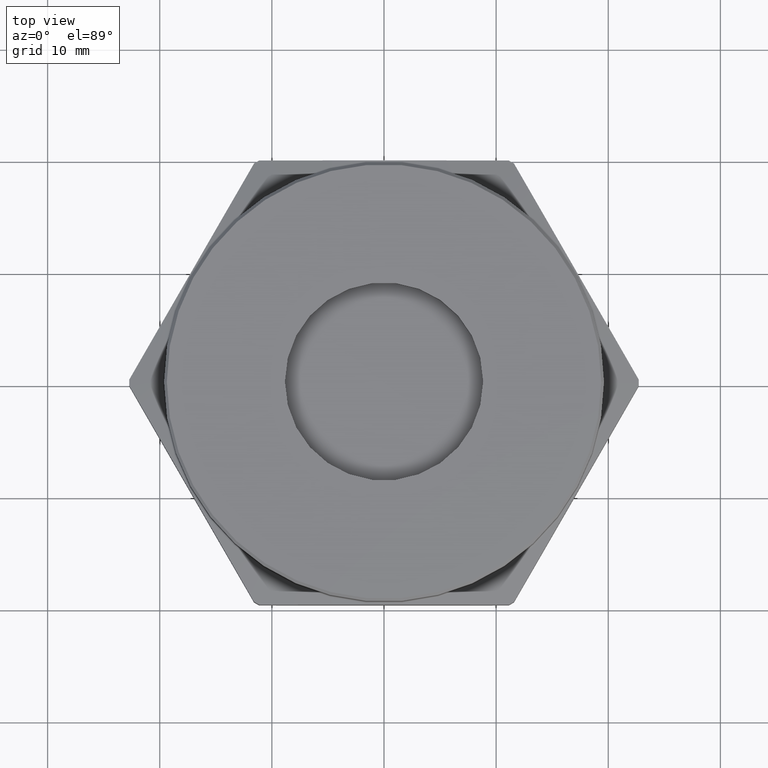
[diagram: clean part render]
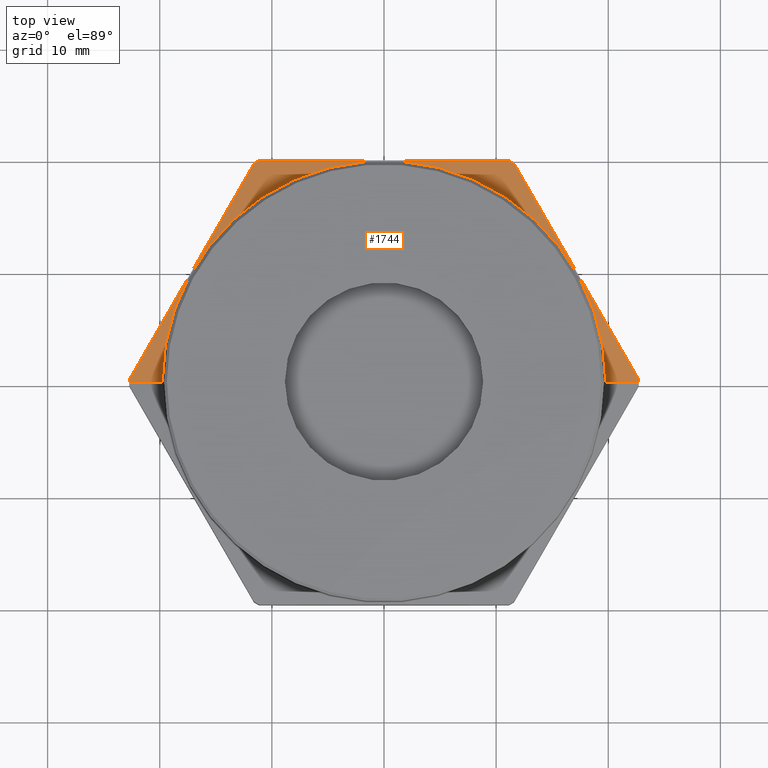
[diagram: same view with one face highlighted and labeled with its STEP entity id]
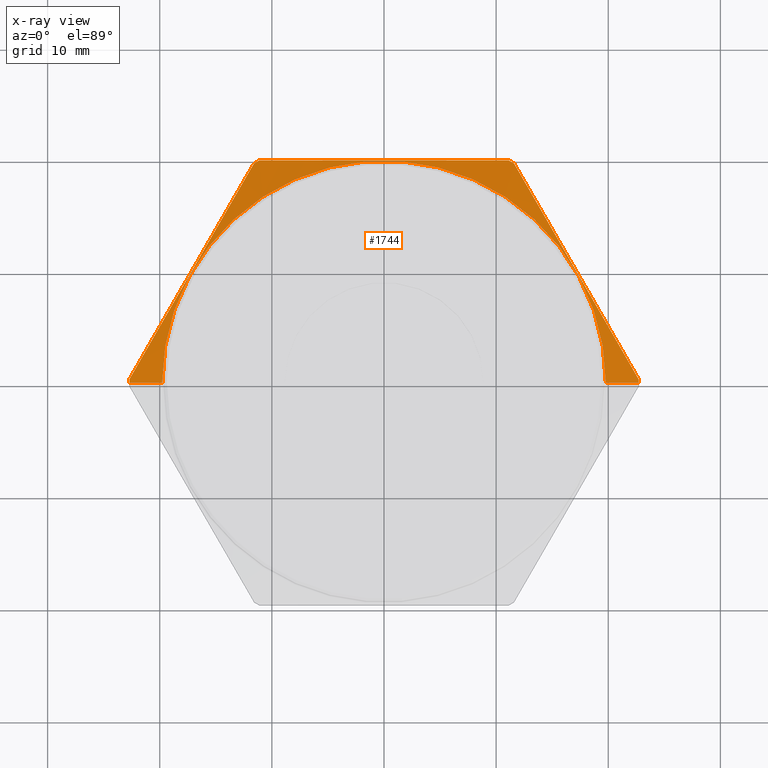
[diagram: x-ray of the same camera — body ghosted, the highlighted face saturated]
A machine part, top view. The second image highlights one B-rep face of the part: STEP entity #1744.
The next image is the same camera in x-ray: the body ghosted, the highlighted face saturated — about 0% of this face is hidden behind the body in this view.
In plain terms, the highlighted conical surface has half-angle 78 deg.
Its self-contained STEP definition (entity closure, byte-faithful):
#148 = EDGE_LOOP ( 'NONE', ( #2007, #2008, #2009, #2010, #2011, #2012, #2013, #2014, #2015, #2016 ) ) ;
#795 = CARTESIAN_POINT ( 'NONE',  ( -0.4382099987001327700, 0.7799999999999999200, 0.1840327258269070500 ) ) ;
#796 = CARTESIAN_POINT ( 'NONE',  ( 0.7788367064734583700, 9.537998796411874400E-017, 0.2086530914596895800 ) ) ;
#806 = CARTESIAN_POINT ( 'NONE',  ( -0.8946048143019284000, 0.01049900893333925200, 0.1840327258269070800 ) ) ;
#815 = CARTESIAN_POINT ( 'NONE',  ( -0.4563948156017967900, 0.7695009910666600300, 0.1840327258269070500 ) ) ;
#829 = CARTESIAN_POINT ( 'NONE',  ( 0.8946048143019284000, 0.01049900893333993500, 0.1840327258269068800 ) ) ;
#837 = CARTESIAN_POINT ( 'NONE',  ( 0.4563948156017957900, 0.7695009910666607000, 0.1840327258269069100 ) ) ;
#843 = CARTESIAN_POINT ( 'NONE',  ( -0.8946664199358161900, 0.0000000000000000000, 0.1840327258269070800 ) ) ;
#862 = CARTESIAN_POINT ( 'NONE',  ( 0.8946664199358161900, 1.095650367479019000E-016, 0.1840327258269068800 ) ) ;
#866 = CARTESIAN_POINT ( 'NONE',  ( 0.4382099987001329400, 0.7799999999999996900, 0.1840327258269069100 ) ) ;
#868 = CARTESIAN_POINT ( 'NONE',  ( -0.7788367064734586000, 0.0000000000000000000, 0.2086530914596896900 ) ) ;
#1271 = DIRECTION ( 'NONE',  ( -1.000000000000000000, 0.0000000000000000000, 1.145055827285428600E-016 ) ) ;
#1272 = CARTESIAN_POINT ( 'NONE',  ( 2.253750886222834200E-017, 0.0000000000000000000, 0.1840327258269069700 ) ) ;
#1273 = DIRECTION ( 'NONE',  ( -1.224646799147349800E-016, -0.0000000000000000000, -1.000000000000000000 ) ) ;
#1744 = ADVANCED_FACE ( 'NONE', ( #2164 ), #2173, .T. ) ;
#1795 = B_SPLINE_CURVE_WITH_KNOTS ( 'NONE', 3,
 ( #2704, #2700, #2699, #2705, #2706, #2707, #2708, #2709, #2710 ),
 .UNSPECIFIED., .F., .F.,
 ( 4, 2, 1, 2, 4 ),
 ( 1.920904841473005000E-006, 0.005567187888333153900, 0.01113245487182483500, 0.01669772185531651400, 0.02226298883880819400 ),
 .UNSPECIFIED. ) ;
#1796 = B_SPLINE_CURVE_WITH_KNOTS ( 'NONE', 3,
 ( #2716, #2712, #2711, #2717, #2718, #2719, #2720, #2721, #2722, #2723 ),
 .UNSPECIFIED., .F., .F.,
 ( 4, 2, 2, 2, 4 ),
 ( 0.04354443558514912300, 0.04912637471211399300, 0.05470831383907886300, 0.06029025296604372700, 0.06587219209300859700 ),
 .UNSPECIFIED. ) ;
#1797 = B_SPLINE_CURVE_WITH_KNOTS ( 'NONE', 3,
 ( #2730, #2725, #2724, #2731, #2732, #2733, #2734, #2735, #2736 ),
 .UNSPECIFIED., .F., .F.,
 ( 4, 2, 1, 2, 4 ),
 ( 1.920904841505880900E-006, 0.005567187888333187700, 0.01113245487182486400, 0.01669772185531654200, 0.02226298883880821800 ),
 .UNSPECIFIED. ) ;
#1900 = EDGE_CURVE ( 'NONE', #2114, #2053, #2295, .T. ) ;
#1901 = EDGE_CURVE ( 'NONE', #2053, #2108, #2296, .T. ) ;
#1902 = EDGE_CURVE ( 'NONE', #2075, #2108, #2300, .T. ) ;
#1903 = EDGE_CURVE ( 'NONE', #2075, #2083, #1795, .T. ) ;
#1904 = EDGE_CURVE ( 'NONE', #2112, #2083, #2302, .T. ) ;
#1905 = EDGE_CURVE ( 'NONE', #2112, #2041, #1796, .T. ) ;
#1906 = EDGE_CURVE ( 'NONE', #2061, #2041, #2304, .T. ) ;
#1907 = EDGE_CURVE ( 'NONE', #2061, #2050, #1797, .T. ) ;
#1908 = EDGE_CURVE ( 'NONE', #2089, #2050, #2305, .T. ) ;
#1909 = EDGE_CURVE ( 'NONE', #2114, #2089, #2303, .T. ) ;
#2007 = ORIENTED_EDGE ( 'NONE', *, *, #1900, .T. ) ;
#2008 = ORIENTED_EDGE ( 'NONE', *, *, #1901, .T. ) ;
#2009 = ORIENTED_EDGE ( 'NONE', *, *, #1902, .F. ) ;
#2010 = ORIENTED_EDGE ( 'NONE', *, *, #1903, .T. ) ;
#2011 = ORIENTED_EDGE ( 'NONE', *, *, #1904, .F. ) ;
#2012 = ORIENTED_EDGE ( 'NONE', *, *, #1905, .T. ) ;
#2013 = ORIENTED_EDGE ( 'NONE', *, *, #1906, .F. ) ;
#2014 = ORIENTED_EDGE ( 'NONE', *, *, #1907, .T. ) ;
#2015 = ORIENTED_EDGE ( 'NONE', *, *, #1908, .F. ) ;
#2016 = ORIENTED_EDGE ( 'NONE', *, *, #1909, .F. ) ;
#2041 = VERTEX_POINT ( 'NONE', #795 ) ;
#2050 = VERTEX_POINT ( 'NONE', #806 ) ;
#2053 = VERTEX_POINT ( 'NONE', #796 ) ;
#2061 = VERTEX_POINT ( 'NONE', #815 ) ;
#2075 = VERTEX_POINT ( 'NONE', #829 ) ;
#2083 = VERTEX_POINT ( 'NONE', #837 ) ;
#2089 = VERTEX_POINT ( 'NONE', #843 ) ;
#2108 = VERTEX_POINT ( 'NONE', #862 ) ;
#2112 = VERTEX_POINT ( 'NONE', #866 ) ;
#2114 = VERTEX_POINT ( 'NONE', #868 ) ;
#2164 = FACE_OUTER_BOUND ( 'NONE', #148, .T. ) ;
#2173 = CONICAL_SURFACE ( 'NONE', #2407, 0.8946664199358161900, 1.361356816555576700 ) ;
#2295 = CIRCLE ( 'NONE', #2478, 0.7788367064734583700 ) ;
#2296 = LINE ( 'NONE', #2695, #2301 ) ;
#2300 = CIRCLE ( 'NONE', #2479, 0.8946664199358161900 ) ;
#2301 = VECTOR ( 'NONE', #2694, 39.37007874015748100 ) ;
#2302 = CIRCLE ( 'NONE', #2480, 0.8946664199358161900 ) ;
#2303 = LINE ( 'NONE', #2737, #2307 ) ;
#2304 = CIRCLE ( 'NONE', #2481, 0.8946664199358161900 ) ;
#2305 = CIRCLE ( 'NONE', #2482, 0.8946664199358161900 ) ;
#2307 = VECTOR ( 'NONE', #2726, 39.37007874015747400 ) ;
#2407 = AXIS2_PLACEMENT_3D ( 'NONE', #1272, #1273, #1271 ) ;
#2478 = AXIS2_PLACEMENT_3D ( 'NONE', #2696, #2697, #2698 ) ;
#2479 = AXIS2_PLACEMENT_3D ( 'NONE', #2701, #2702, #2703 ) ;
#2480 = AXIS2_PLACEMENT_3D ( 'NONE', #2713, #2714, #2715 ) ;
#2481 = AXIS2_PLACEMENT_3D ( 'NONE', #2727, #2728, #2729 ) ;
#2482 = AXIS2_PLACEMENT_3D ( 'NONE', #2738, #2739, #2740 ) ;
#2694 = DIRECTION ( 'NONE',  ( 0.9781476007338054700, 1.197885328332318200E-016, -0.2079116908177597900 ) ) ;
#2695 = CARTESIAN_POINT ( 'NONE',  ( 0.8946664199358161900, 1.095650367479019000E-016, 0.1840327258269068800 ) ) ;
#2696 = CARTESIAN_POINT ( 'NONE',  ( 2.555263405883082100E-017, 0.0000000000000000000, 0.2086530914596896300 ) ) ;
#2697 = DIRECTION ( 'NONE',  ( -6.123233995736748800E-017, -0.0000000000000000000, -1.000000000000000000 ) ) ;
#2698 = DIRECTION ( 'NONE',  ( 1.000000000000000000, 0.0000000000000000000, -4.384500581055626800E-017 ) ) ;
#2699 = CARTESIAN_POINT ( 'NONE',  ( 0.8215698145185730300, 0.1369993392888934600, 0.1977905743806301400 ) ) ;
#2700 = CARTESIAN_POINT ( 'NONE',  ( 0.8580873144102504300, 0.07374917411111675500, 0.1916364559517486900 ) ) ;
#2701 = CARTESIAN_POINT ( 'NONE',  ( 2.253750886222834200E-017, 0.0000000000000000000, 0.1840327258269069700 ) ) ;
#2702 = DIRECTION ( 'NONE',  ( -1.224646799147349800E-016, -0.0000000000000000000, -1.000000000000000000 ) ) ;
#2703 = DIRECTION ( 'NONE',  ( -1.000000000000000000, 0.0000000000000000000, 1.145055827285428600E-016 ) ) ;
#2704 = CARTESIAN_POINT ( 'NONE',  ( 0.8946048143019284000, 0.01049900893333993500, 0.1840327258269068800 ) ) ;
#2705 = CARTESIAN_POINT ( 'NONE',  ( 0.7485348147352174400, 0.2634996696444468800, 0.2061871311607139900 ) ) ;
#2706 = CARTESIAN_POINT ( 'NONE',  ( 0.6754998149518619500, 0.3900000000000003500, 0.2106245204142357400 ) ) ;
#2707 = CARTESIAN_POINT ( 'NONE',  ( 0.6024648151685067000, 0.5165003303555537600, 0.2061871311607139900 ) ) ;
#2708 = CARTESIAN_POINT ( 'NONE',  ( 0.5294298153851513300, 0.6430006607111072900, 0.1977905743806301900 ) ) ;
#2709 = CARTESIAN_POINT ( 'NONE',  ( 0.4929123154934735900, 0.7062508258888842100, 0.1916364559517487700 ) ) ;
#2710 = CARTESIAN_POINT ( 'NONE',  ( 0.4563948156017957900, 0.7695009910666607000, 0.1840327258269069100 ) ) ;
#2711 = CARTESIAN_POINT ( 'NONE',  ( 0.2924204378380556000, 0.7799999999999999200, 0.1977680384218828400 ) ) ;
#2712 = CARTESIAN_POINT ( 'NONE',  ( 0.3653313671894612400, 0.7800000000000000300, 0.1916201763303467300 ) ) ;
#2713 = CARTESIAN_POINT ( 'NONE',  ( 2.253750886222834200E-017, 0.0000000000000000000, 0.1840327258269069700 ) ) ;
#2714 = DIRECTION ( 'NONE',  ( -1.224646799147349800E-016, -0.0000000000000000000, -1.000000000000000000 ) ) ;
#2715 = DIRECTION ( 'NONE',  ( -1.000000000000000000, 0.0000000000000000000, 1.145055827285428600E-016 ) ) ;
#2716 = CARTESIAN_POINT ( 'NONE',  ( 0.4382099987001329400, 0.7799999999999996900, 0.1840327258269069100 ) ) ;
#2717 = CARTESIAN_POINT ( 'NONE',  ( 0.1465111793437916800, 0.7799999999999999200, 0.2061681545977800100 ) ) ;
#2718 = CARTESIAN_POINT ( 'NONE',  ( 0.07351231529379950700, 0.7799999999999996900, 0.2083965666514050200 ) ) ;
#2719 = CARTESIAN_POINT ( 'NONE',  ( -0.07258498959213777200, 0.7799999999999996900, 0.2084150263388088700 ) ) ;
#2720 = CARTESIAN_POINT ( 'NONE',  ( -0.1456834458092450800, 0.7800000000000000300, 0.2062043883991165100 ) ) ;
#2721 = CARTESIAN_POINT ( 'NONE',  ( -0.2919696020277484100, 0.7800000000000000300, 0.1978053135468948700 ) ) ;
#2722 = CARTESIAN_POINT ( 'NONE',  ( -0.3652255891295628200, 0.7800000000000000300, 0.1916311889656994200 ) ) ;
#2723 = CARTESIAN_POINT ( 'NONE',  ( -0.4382099987001327700, 0.7799999999999999200, 0.1840327258269070500 ) ) ;
#2724 = CARTESIAN_POINT ( 'NONE',  ( -0.5294298153851517700, 0.6430006607111065100, 0.1977905743806302700 ) ) ;
#2725 = CARTESIAN_POINT ( 'NONE',  ( -0.4929123154934743100, 0.7062508258888833300, 0.1916364559517489100 ) ) ;
#2726 = DIRECTION ( 'NONE',  ( -0.9781476007338056900, 0.0000000000000000000, -0.2079116908177596200 ) ) ;
#2727 = CARTESIAN_POINT ( 'NONE',  ( 2.253750886222834200E-017, 0.0000000000000000000, 0.1840327258269069700 ) ) ;
#2728 = DIRECTION ( 'NONE',  ( -1.224646799147349800E-016, -0.0000000000000000000, -1.000000000000000000 ) ) ;
#2729 = DIRECTION ( 'NONE',  ( -1.000000000000000000, 0.0000000000000000000, 1.145055827285428600E-016 ) ) ;
#2730 = CARTESIAN_POINT ( 'NONE',  ( -0.4563948156017967900, 0.7695009910666600300, 0.1840327258269070500 ) ) ;
#2731 = CARTESIAN_POINT ( 'NONE',  ( -0.6024648151685070300, 0.5165003303555528700, 0.2061871311607141300 ) ) ;
#2732 = CARTESIAN_POINT ( 'NONE',  ( -0.6754998149518622900, 0.3899999999999993500, 0.2106245204142358800 ) ) ;
#2733 = CARTESIAN_POINT ( 'NONE',  ( -0.7485348147352178800, 0.2634996696444460400, 0.2061871311607141900 ) ) ;
#2734 = CARTESIAN_POINT ( 'NONE',  ( -0.8215698145185730300, 0.1369993392888925700, 0.1977905743806303600 ) ) ;
#2735 = CARTESIAN_POINT ( 'NONE',  ( -0.8580873144102508800, 0.07374917411111583900, 0.1916364559517489400 ) ) ;
#2736 = CARTESIAN_POINT ( 'NONE',  ( -0.8946048143019284000, 0.01049900893333925200, 0.1840327258269070800 ) ) ;
#2737 = CARTESIAN_POINT ( 'NONE',  ( -0.8946664199358161900, 0.0000000000000000000, 0.1840327258269070800 ) ) ;
#2738 = CARTESIAN_POINT ( 'NONE',  ( 2.253750886222834200E-017, 0.0000000000000000000, 0.1840327258269069700 ) ) ;
#2739 = DIRECTION ( 'NONE',  ( -1.224646799147349800E-016, -0.0000000000000000000, -1.000000000000000000 ) ) ;
#2740 = DIRECTION ( 'NONE',  ( -1.000000000000000000, 0.0000000000000000000, 1.145055827285428600E-016 ) ) ;